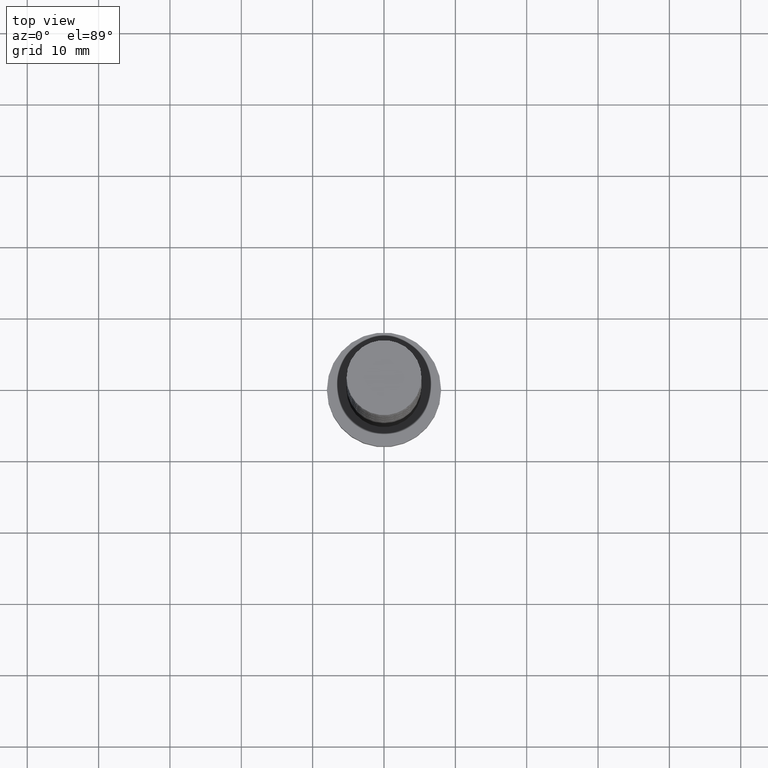
[diagram: clean part render]
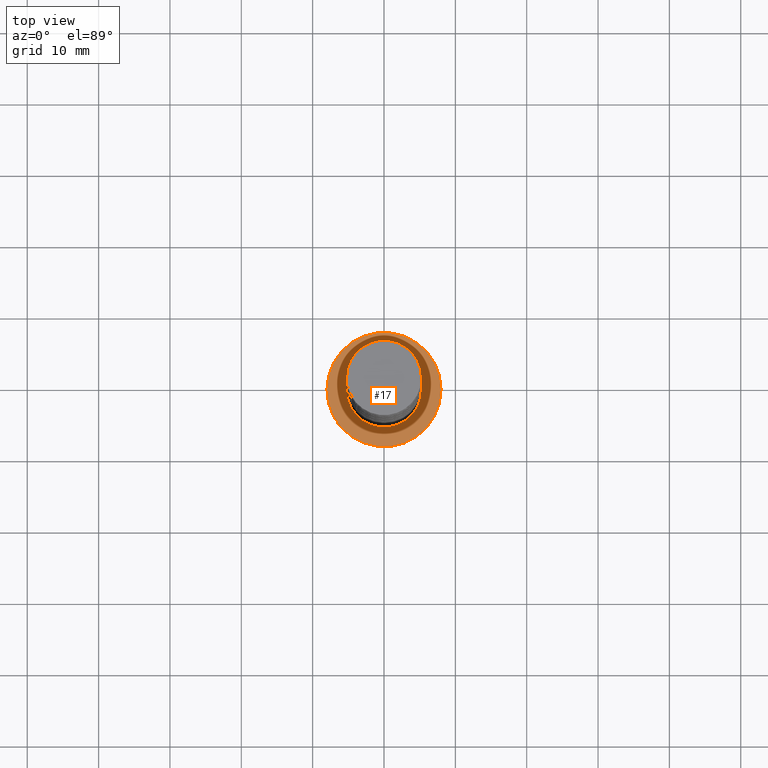
[diagram: same view with one face highlighted and labeled with its STEP entity id]
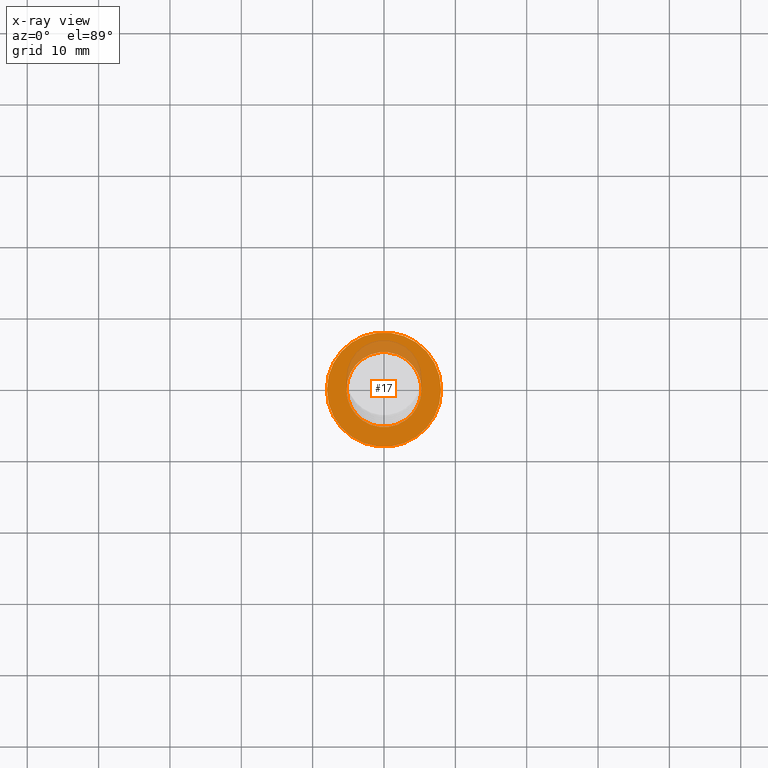
[diagram: x-ray of the same camera — body ghosted, the highlighted face saturated]
A machine part, top view. The second image highlights one B-rep face of the part: STEP entity #17.
The next image is the same camera in x-ray: the body ghosted, the highlighted face saturated — about 15% of this face is hidden behind the body in this view.
In plain terms, the highlighted planar face has unit normal (0, 0, 1).
Its self-contained STEP definition (entity closure, byte-faithful):
#4 = CARTESIAN_POINT ( 'NONE',  ( 0.000000000000000000, 0.000000000000000000, 5.000000000000000000 ) ) ;
#17 = ADVANCED_FACE ( 'NONE', ( #1246, #1038 ), #1021, .T. ) ;
#70 = EDGE_CURVE ( 'NONE', #95, #1191, #924, .T. ) ;
#87 = EDGE_LOOP ( 'NONE', ( #989, #1184 ) ) ;
#95 = VERTEX_POINT ( 'NONE', #336 ) ;
#109 = DIRECTION ( 'NONE',  ( 0.000000000000000000, 0.000000000000000000, 1.000000000000000000 ) ) ;
#132 = AXIS2_PLACEMENT_3D ( 'NONE', #4, #1271, #897 ) ;
#181 = EDGE_CURVE ( 'NONE', #1386, #1032, #519, .T. ) ;
#269 = DIRECTION ( 'NONE',  ( 0.000000000000000000, 0.000000000000000000, 1.000000000000000000 ) ) ;
#281 = ORIENTED_EDGE ( 'NONE', *, *, #70, .F. ) ;
#336 = CARTESIAN_POINT ( 'NONE',  ( 5.250000000000000000, 6.429395695523604153E-16, 5.000000000000000000 ) ) ;
#353 = EDGE_CURVE ( 'NONE', #1191, #95, #832, .T. ) ;
#374 = CIRCLE ( 'NONE', #1440, 8.000000000000000000 ) ;
#519 = CIRCLE ( 'NONE', #787, 8.000000000000000000 ) ;
#643 = EDGE_LOOP ( 'NONE', ( #881, #281 ) ) ;
#652 = CARTESIAN_POINT ( 'NONE',  ( 0.000000000000000000, 0.000000000000000000, 5.000000000000000000 ) ) ;
#657 = CARTESIAN_POINT ( 'NONE',  ( 0.000000000000000000, 0.000000000000000000, 5.000000000000000000 ) ) ;
#674 = CARTESIAN_POINT ( 'NONE',  ( 0.000000000000000000, 0.000000000000000000, 5.000000000000000000 ) ) ;
#738 = DIRECTION ( 'NONE',  ( 1.000000000000000000, 0.000000000000000000, 0.000000000000000000 ) ) ;
#787 = AXIS2_PLACEMENT_3D ( 'NONE', #945, #269, #738 ) ;
#832 = CIRCLE ( 'NONE', #1128, 5.250000000000000000 ) ;
#856 = CARTESIAN_POINT ( 'NONE',  ( -5.250000000000000000, 0.000000000000000000, 5.000000000000000000 ) ) ;
#881 = ORIENTED_EDGE ( 'NONE', *, *, #353, .F. ) ;
#897 = DIRECTION ( 'NONE',  ( 1.000000000000000000, 0.000000000000000000, -0.000000000000000000 ) ) ;
#906 = DIRECTION ( 'NONE',  ( 1.000000000000000000, 0.000000000000000000, 0.000000000000000000 ) ) ;
#914 = DIRECTION ( 'NONE',  ( 0.000000000000000000, 0.000000000000000000, 1.000000000000000000 ) ) ;
#924 = CIRCLE ( 'NONE', #1022, 5.250000000000000000 ) ;
#945 = CARTESIAN_POINT ( 'NONE',  ( 0.000000000000000000, 0.000000000000000000, 5.000000000000000000 ) ) ;
#989 = ORIENTED_EDGE ( 'NONE', *, *, #1277, .T. ) ;
#1021 = PLANE ( 'NONE',  #132 ) ;
#1022 = AXIS2_PLACEMENT_3D ( 'NONE', #674, #914, #1365 ) ;
#1032 = VERTEX_POINT ( 'NONE', #1391 ) ;
#1038 = FACE_OUTER_BOUND ( 'NONE', #87, .T. ) ;
#1093 = DIRECTION ( 'NONE',  ( 1.000000000000000000, 0.000000000000000000, 0.000000000000000000 ) ) ;
#1128 = AXIS2_PLACEMENT_3D ( 'NONE', #652, #1207, #1093 ) ;
#1184 = ORIENTED_EDGE ( 'NONE', *, *, #181, .T. ) ;
#1191 = VERTEX_POINT ( 'NONE', #856 ) ;
#1207 = DIRECTION ( 'NONE',  ( 0.000000000000000000, 0.000000000000000000, 1.000000000000000000 ) ) ;
#1246 = FACE_BOUND ( 'NONE', #643, .T. ) ;
#1271 = DIRECTION ( 'NONE',  ( 0.000000000000000000, 0.000000000000000000, 1.000000000000000000 ) ) ;
#1277 = EDGE_CURVE ( 'NONE', #1032, #1386, #374, .T. ) ;
#1365 = DIRECTION ( 'NONE',  ( 1.000000000000000000, 0.000000000000000000, 0.000000000000000000 ) ) ;
#1386 = VERTEX_POINT ( 'NONE', #1409 ) ;
#1391 = CARTESIAN_POINT ( 'NONE',  ( -8.000000000000000000, 0.000000000000000000, 5.000000000000000000 ) ) ;
#1409 = CARTESIAN_POINT ( 'NONE',  ( 8.000000000000000000, 9.797174393178825657E-16, 5.000000000000000000 ) ) ;
#1440 = AXIS2_PLACEMENT_3D ( 'NONE', #657, #109, #906 ) ;